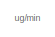
[diagram: root canvas - part 1/2, top left region]
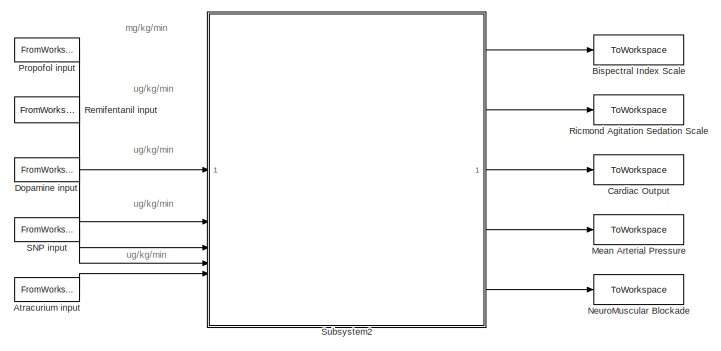
[diagram: root canvas - part 2/2, bottom right region]
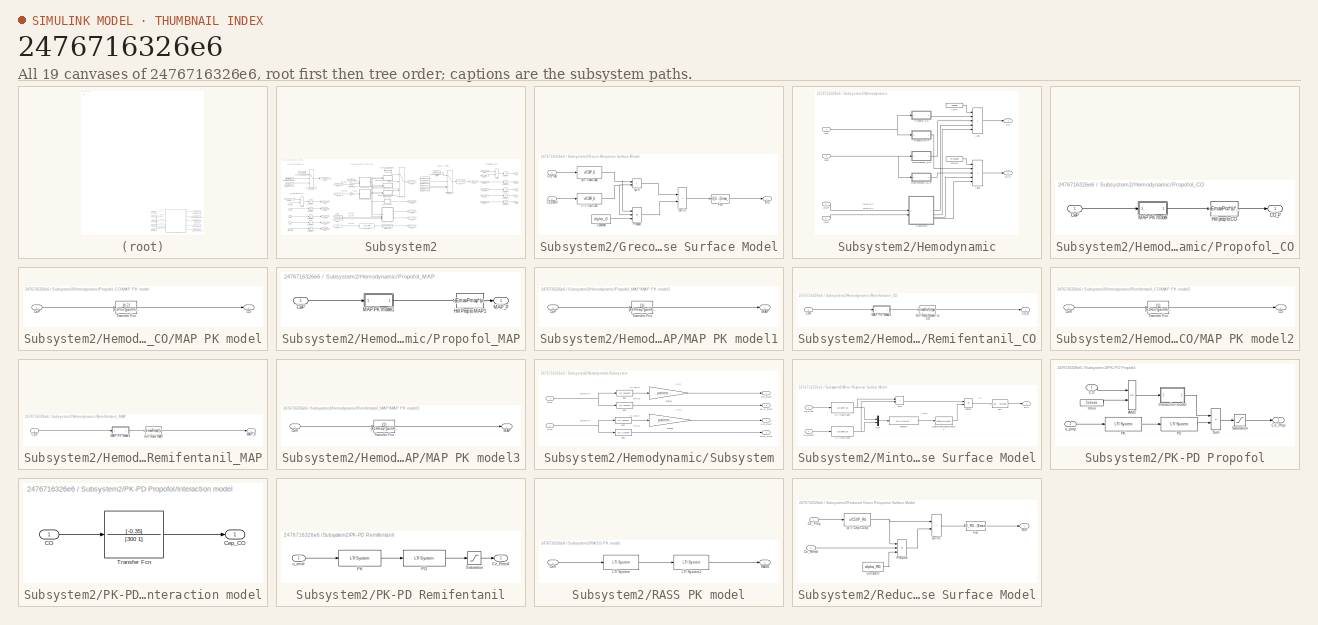
[diagram: thumbnail index - all 19 canvases of the model, root first then tree order]
MODEL slx_2476716326e6
KIND model
CONFIG AbsTol = auto
CONFIG EnableMultiTasking = off
CONFIG FixedStep = ST
CONFIG MaxStep = auto
CONFIG MinStep = auto
CONFIG RelTol = 1e-3
CONFIG SampleTimeConstraint = Unconstrained
CONFIG SolverName = ode3
CONFIG StartTime = 0.0
CONFIG StopTime = Tsim
BLOCK [FromWorkspace] Atracurium input
  Interpolate = off
  OutputAfterFinalValue = Setting to zero
  VariableName = Atracinput
BLOCK [ToWorkspace] Bispectral Index Scale
  FixptAsFi = on
  MaxDataPoints = inf
  SampleTime = -1
  SaveFormat = Timeseries
  VariableName = BIS
BLOCK [ToWorkspace] Cardiac Output
  FixptAsFi = on
  MaxDataPoints = inf
  SampleTime = -1
  SaveFormat = Timeseries
  VariableName = CO
BLOCK [FromWorkspace] Dopamine input
  Interpolate = off
  OutputAfterFinalValue = Setting to zero
  VariableName = Dopinput
BLOCK [ToWorkspace] Mean Arterial Pressure
  FixptAsFi = on
  MaxDataPoints = inf
  SampleTime = -1
  SaveFormat = Timeseries
  VariableName = MAP
BLOCK [ToWorkspace] NeuroMuscular Blockade
  FixptAsFi = on
  MaxDataPoints = inf
  SampleTime = -1
  SaveFormat = Timeseries
  VariableName = NMB
BLOCK [FromWorkspace] Propofol input
  Interpolate = off
  OutputAfterFinalValue = Setting to zero
  VariableName = Propinput
BLOCK [FromWorkspace] Remifentanil input
  Interpolate = off
  OutputAfterFinalValue = Setting to zero
  VariableName = Reminput
BLOCK [ToWorkspace] Ricmond Agitation Sedation Scale
  FixptAsFi = on
  MaxDataPoints = inf
  SampleTime = -1
  SaveFormat = Timeseries
  VariableName = RASS
BLOCK [FromWorkspace] SNP input
  Interpolate = off
  OutputAfterFinalValue = Setting to zero
  VariableName = SNPinput
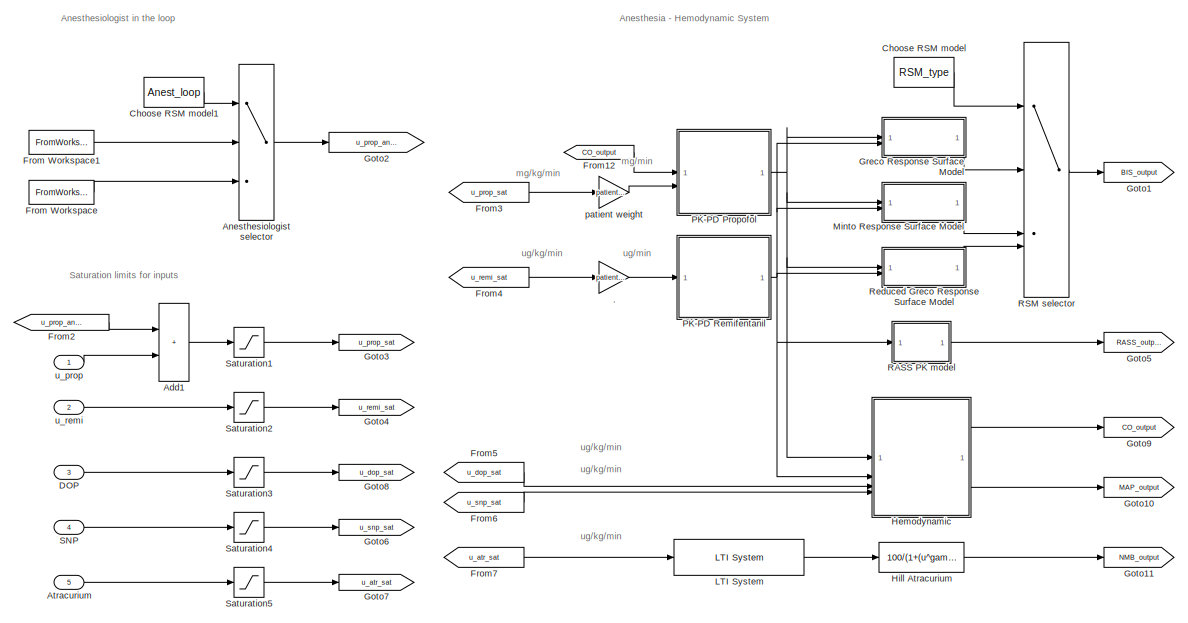
[diagram: Subsystem2 - part 1/2, left side, full height]
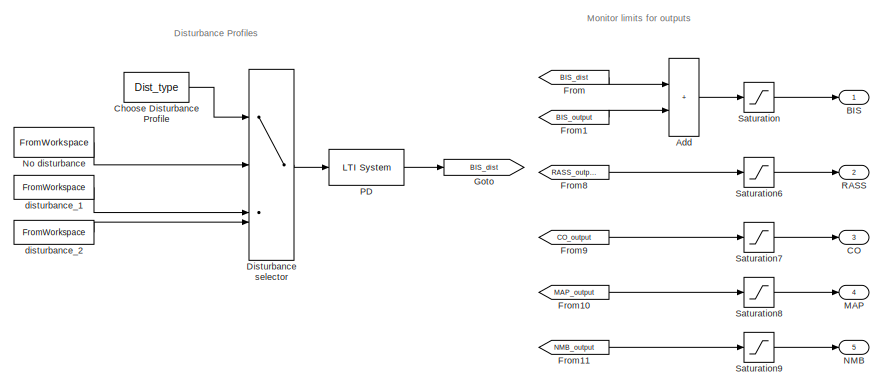
[diagram: Subsystem2 - part 2/2, middle right region]
BLOCK [SubSystem] Subsystem2
BLOCK [Gain] Subsystem2/.
  Gain = patient.weight
BLOCK [Sum] Subsystem2/Add
  IconShape = rectangular
BLOCK [Sum] Subsystem2/Add1
  IconShape = rectangular
BLOCK [MultiPortSwitch] Subsystem2/Anesthesiologist selector
  DataPortIndices = {1,2}
  DataPortOrder = Specify indices
  InputSameDT = off
  Inputs = 2
  SaturateOnIntegerOverflow = off
BLOCK [Inport] Subsystem2/Atracurium
  Port = 5
BLOCK [Outport] Subsystem2/BIS
BLOCK [Outport] Subsystem2/CO
  Port = 3
BLOCK [Constant] Subsystem2/Choose Disturbance Profile
  Value = Dist_type
BLOCK [Constant] Subsystem2/Choose RSM model
  Value = RSM_type
BLOCK [Constant] Subsystem2/Choose RSM model1
  Value = Anest_loop
BLOCK [Inport] Subsystem2/DOP
  Port = 3
BLOCK [MultiPortSwitch] Subsystem2/Disturbance selector
  DataPortOrder = Specify indices
  InputSameDT = off
  Inputs = 10
  SaturateOnIntegerOverflow = off
BLOCK [From] Subsystem2/From
  GotoTag = BIS_dist
BLOCK [FromWorkspace] Subsystem2/From Workspace
  VariableName = anestS
BLOCK [FromWorkspace] Subsystem2/From Workspace1
  VariableName = no_anest
BLOCK [From] Subsystem2/From1
  GotoTag = BIS_output
BLOCK [From] Subsystem2/From10
  GotoTag = MAP_output
BLOCK [From] Subsystem2/From11
  GotoTag = NMB_output
BLOCK [From] Subsystem2/From12
  GotoTag = CO_output
BLOCK [From] Subsystem2/From2
  GotoTag = u_prop_anest
BLOCK [From] Subsystem2/From3
  GotoTag = u_prop_sat
BLOCK [From] Subsystem2/From4
  GotoTag = u_remi_sat
BLOCK [From] Subsystem2/From5
  GotoTag = u_dop_sat
BLOCK [From] Subsystem2/From6
  GotoTag = u_snp_sat
BLOCK [From] Subsystem2/From7
  GotoTag = u_atr_sat
BLOCK [From] Subsystem2/From8
  GotoTag = RASS_output
BLOCK [From] Subsystem2/From9
  GotoTag = CO_output
BLOCK [Goto] Subsystem2/Goto
  GotoTag = BIS_dist
BLOCK [Goto] Subsystem2/Goto1
  GotoTag = BIS_output
BLOCK [Goto] Subsystem2/Goto10
  GotoTag = MAP_output
BLOCK [Goto] Subsystem2/Goto11
  GotoTag = NMB_output
BLOCK [Goto] Subsystem2/Goto2
  GotoTag = u_prop_anest
BLOCK [Goto] Subsystem2/Goto3
  GotoTag = u_prop_sat
BLOCK [Goto] Subsystem2/Goto4
  GotoTag = u_remi_sat
BLOCK [Goto] Subsystem2/Goto5
  GotoTag = RASS_output
BLOCK [Goto] Subsystem2/Goto6
  GotoTag = u_snp_sat
BLOCK [Goto] Subsystem2/Goto7
  GotoTag = u_atr_sat
BLOCK [Goto] Subsystem2/Goto8
  GotoTag = u_dop_sat
BLOCK [Goto] Subsystem2/Goto9
  GotoTag = CO_output
BLOCK [SubSystem] Subsystem2/Greco Response Surface Model
BLOCK [Outport] Subsystem2/Greco Response Surface Model/BIS
BLOCK [Inport] Subsystem2/Greco Response Surface Model/Ce_Prop
BLOCK [Inport] Subsystem2/Greco Response Surface Model/Ce_Remif
  Port = 2
BLOCK [Constant] Subsystem2/Greco Response Surface Model/Constant
  Value = alpha_G
BLOCK [Fcn] Subsystem2/Greco Response Surface Model/Fcn
  Expr = E0_G - (Emax_G) * u^gamma_G / (1+u^gamma_G)
BLOCK [Fcn] Subsystem2/Greco Response Surface Model/Ip = Cep//C50p
  Expr = u/C50P_G
BLOCK [Sum] Subsystem2/Greco Response Surface Model/Ip+Ir
  IconShape = rectangular
BLOCK [Sum] Subsystem2/Greco Response Surface Model/Ip+Ir1
  IconShape = rectangular
BLOCK [Fcn] Subsystem2/Greco Response Surface Model/Ir = Cer//C50r
  Expr = u/C50R_G
BLOCK [Product] Subsystem2/Greco Response Surface Model/Product
  Inputs = 3
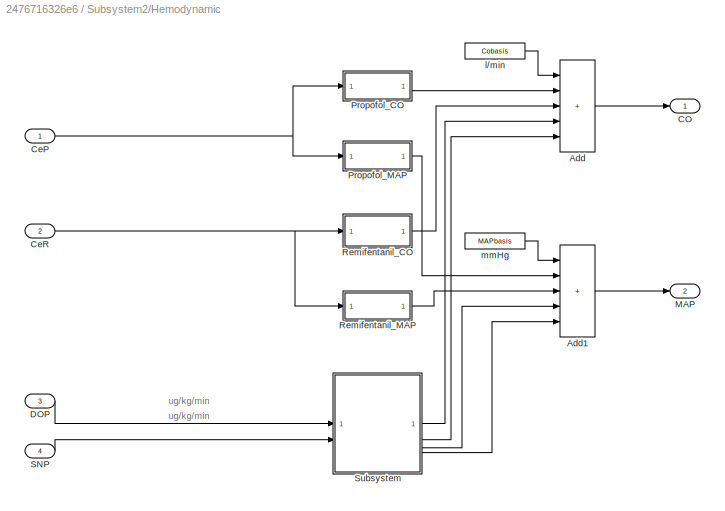
BLOCK [SubSystem] Subsystem2/Hemodynamic
BLOCK [Sum] Subsystem2/Hemodynamic/Add
  IconShape = rectangular
  Inputs = +++++
BLOCK [Sum] Subsystem2/Hemodynamic/Add1
  IconShape = rectangular
  Inputs = +++++
BLOCK [Outport] Subsystem2/Hemodynamic/CO
BLOCK [Inport] Subsystem2/Hemodynamic/CeP
BLOCK [Inport] Subsystem2/Hemodynamic/CeR
  Port = 2
BLOCK [Inport] Subsystem2/Hemodynamic/DOP
  Port = 3
BLOCK [Outport] Subsystem2/Hemodynamic/MAP
  Port = 2
BLOCK [SubSystem] Subsystem2/Hemodynamic/Propofol_CO
BLOCK [Outport] Subsystem2/Hemodynamic/Propofol_CO/CO_P
  VectorParamsAs1DForOutWhenUnconnected = off
BLOCK [Inport] Subsystem2/Hemodynamic/Propofol_CO/CeP
BLOCK [Fcn] Subsystem2/Hemodynamic/Propofol_CO/Hill prop to CO
  Expr = -(EmaxPco*(u^gammaPco/(u^gammaPco+C50Pco^gammaPco)))
BLOCK [SubSystem] Subsystem2/Hemodynamic/Propofol_CO/MAP PK model
BLOCK [Outport] Subsystem2/Hemodynamic/Propofol_CO/MAP PK model/CO
BLOCK [Inport] Subsystem2/Hemodynamic/Propofol_CO/MAP PK model/CeP
BLOCK [TransferFcn] Subsystem2/Hemodynamic/Propofol_CO/MAP PK model/Transfer Fcn
  Denominator = [k1Pco*gainPco k0Pco]
  Numerator = [0.7]
BLOCK [SubSystem] Subsystem2/Hemodynamic/Propofol_MAP
BLOCK [Inport] Subsystem2/Hemodynamic/Propofol_MAP/CeP
BLOCK [Fcn] Subsystem2/Hemodynamic/Propofol_MAP/Hill Prop to MAP1
  Expr = -(EmaxPmap*(u^gammaPmap/(u^gammaPmap+C50Pmap^gammaPmap)))
BLOCK [SubSystem] Subsystem2/Hemodynamic/Propofol_MAP/MAP PK model1
BLOCK [Inport] Subsystem2/Hemodynamic/Propofol_MAP/MAP PK model1/CeP
BLOCK [Outport] Subsystem2/Hemodynamic/Propofol_MAP/MAP PK model1/MAP
BLOCK [TransferFcn] Subsystem2/Hemodynamic/Propofol_MAP/MAP PK model1/Transfer Fcn
  Denominator = [k1Pmap*gainPmap k0Pmap]
BLOCK [Outport] Subsystem2/Hemodynamic/Propofol_MAP/MAP_P
  VectorParamsAs1DForOutWhenUnconnected = off
BLOCK [SubSystem] Subsystem2/Hemodynamic/Remifentanil_CO
BLOCK [Outport] Subsystem2/Hemodynamic/Remifentanil_CO/CO_R
  VectorParamsAs1DForOutWhenUnconnected = off
BLOCK [Inport] Subsystem2/Hemodynamic/Remifentanil_CO/CeR
BLOCK [Fcn] Subsystem2/Hemodynamic/Remifentanil_CO/Hill Remifentanil to CO
  Expr = EmaxRco*(u^gammaRco/(u^gammaRco+C50Rco^gammaRco))
BLOCK [SubSystem] Subsystem2/Hemodynamic/Remifentanil_CO/MAP PK model2
BLOCK [Outport] Subsystem2/Hemodynamic/Remifentanil_CO/MAP PK model2/CO
BLOCK [Inport] Subsystem2/Hemodynamic/Remifentanil_CO/MAP PK model2/CeR
BLOCK [TransferFcn] Subsystem2/Hemodynamic/Remifentanil_CO/MAP PK model2/Transfer Fcn
  Denominator = [k1Rco*gainRco k0Rco]
BLOCK [SubSystem] Subsystem2/Hemodynamic/Remifentanil_MAP
BLOCK [Inport] Subsystem2/Hemodynamic/Remifentanil_MAP/Ce_R
BLOCK [Fcn] Subsystem2/Hemodynamic/Remifentanil_MAP/Hill Remi MAP
  Expr = -(EmaxRmap*(u^gammaRmap/(u^gammaRmap+C50Rmap^gammaRmap)))
BLOCK [SubSystem] Subsystem2/Hemodynamic/Remifentanil_MAP/MAP PK model3
BLOCK [Inport] Subsystem2/Hemodynamic/Remifentanil_MAP/MAP PK model3/CeR
BLOCK [Outport] Subsystem2/Hemodynamic/Remifentanil_MAP/MAP PK model3/MAP
BLOCK [TransferFcn] Subsystem2/Hemodynamic/Remifentanil_MAP/MAP PK model3/Transfer Fcn
  Denominator = [k1Rmap*gainRmap k0Rmap]
BLOCK [Outport] Subsystem2/Hemodynamic/Remifentanil_MAP/MAP_R
  VectorParamsAs1DForOutWhenUnconnected = off
BLOCK [Inport] Subsystem2/Hemodynamic/SNP
  Port = 4
BLOCK [SubSystem] Subsystem2/Hemodynamic/Subsystem
BLOCK [Outport] Subsystem2/Hemodynamic/Subsystem/CO_DOP
BLOCK [Outport] Subsystem2/Hemodynamic/Subsystem/CO_SNP
  Port = 2
BLOCK [Inport] Subsystem2/Hemodynamic/Subsystem/DOP
BLOCK [Gain] Subsystem2/Hemodynamic/Subsystem/Gain1
  Gain = patient.weight/1000
BLOCK [Gain] Subsystem2/Hemodynamic/Subsystem/Gain2
  Gain = patient.weight/1000
BLOCK [Outport] Subsystem2/Hemodynamic/Subsystem/MAP_DOP
  Port = 3
BLOCK [Outport] Subsystem2/Hemodynamic/Subsystem/MAP_SNP
  Port = 4
BLOCK [Inport] Subsystem2/Hemodynamic/Subsystem/SNP
  Port = 2
BLOCK [Reference] Subsystem2/Hemodynamic/Subsystem/g11  REF=cstblocks/LTI System
  SourceBlock = cstblocks/LTI System
  SourceType = LTI Block
BLOCK [Reference] Subsystem2/Hemodynamic/Subsystem/g12  REF=cstblocks/LTI System
  SourceBlock = cstblocks/LTI System
  SourceType = LTI Block
BLOCK [Reference] Subsystem2/Hemodynamic/Subsystem/g21  REF=cstblocks/LTI System
  SourceBlock = cstblocks/LTI System
  SourceType = LTI Block
BLOCK [Reference] Subsystem2/Hemodynamic/Subsystem/g22  REF=cstblocks/LTI System
  SourceBlock = cstblocks/LTI System
  SourceType = LTI Block
BLOCK [Constant] Subsystem2/Hemodynamic/l//min
  SampleTime = Ts
  Value = Cobasis
BLOCK [Constant] Subsystem2/Hemodynamic/mmHg
  SampleTime = Ts
  Value = MAPbasis
BLOCK [Fcn] Subsystem2/Hill Atracurium
  Expr = 100/(1+(u^gammaN/C50N^gammaN))
BLOCK [Reference] Subsystem2/LTI System  REF=cstblocks/LTI System
  SourceBlock = cstblocks/LTI System
  SourceType = LTI Block
BLOCK [Outport] Subsystem2/MAP
  Port = 4
BLOCK [SubSystem] Subsystem2/Minto Response Surface Model
BLOCK [Fcn] Subsystem2/Minto Response Surface Model/1-beta*theta+beta*theta^2
  Expr = 1-beta_M*u+beta_M*u^2
BLOCK [Outport] Subsystem2/Minto Response Surface Model/BIS
BLOCK [Inport] Subsystem2/Minto Response Surface Model/Ce_Prop
BLOCK [Inport] Subsystem2/Minto Response Surface Model/Ce_Remif
  Port = 2
BLOCK [Fcn] Subsystem2/Minto Response Surface Model/Fcn
  Expr = E0_M - (Emax_M)*u^gamma_M / (1+u^gamma_M)
BLOCK [Fcn] Subsystem2/Minto Response Surface Model/Ip = Cep//C50p
  Expr = u/C50P_M
BLOCK [Sum] Subsystem2/Minto Response Surface Model/Ip+Ir
  IconShape = rectangular
BLOCK [Fcn] Subsystem2/Minto Response Surface Model/Ir = Cer//C50r
  Expr = u/C50R_M
BLOCK [Mux] Subsystem2/Minto Response Surface Model/Mux
  DisplayOption = bar
  Inputs = 2
BLOCK [Fcn] Subsystem2/Minto Response Surface Model/Theta(t)
  Expr = u(1)/(u(1)+u(2))
BLOCK [Product] Subsystem2/Minto Response Surface Model/Theta1
  Inputs = */
BLOCK [Outport] Subsystem2/NMB
  Port = 5
BLOCK [FromWorkspace] Subsystem2/No disturbance
  Interpolate = off
  OutputAfterFinalValue = Setting to zero
  VariableName = no_disturbance
BLOCK [Reference] Subsystem2/PD  REF=cstblocks/LTI System
  SourceBlock = cstblocks/LTI System
  SourceType = LTI Block
BLOCK [SubSystem] Subsystem2/PK-PD Propofol
BLOCK [Sum] Subsystem2/PK-PD Propofol/Add2
  IconShape = rectangular
  Inputs = +-
BLOCK [Inport] Subsystem2/PK-PD Propofol/CO
BLOCK [Outport] Subsystem2/PK-PD Propofol/Ce_Prop
BLOCK [SubSystem] Subsystem2/PK-PD Propofol/Interaction model
BLOCK [Inport] Subsystem2/PK-PD Propofol/Interaction model/CO
BLOCK [Outport] Subsystem2/PK-PD Propofol/Interaction model/Cep_CO
BLOCK [TransferFcn] Subsystem2/PK-PD Propofol/Interaction model/Transfer Fcn
  Denominator = [300 1]
  Numerator = [-0.35]
BLOCK [Reference] Subsystem2/PK-PD Propofol/PD  REF=cstblocks/LTI System
  SourceBlock = cstblocks/LTI System
  SourceType = LTI Block
BLOCK [Reference] Subsystem2/PK-PD Propofol/PK  REF=cstblocks/LTI System
  SourceBlock = cstblocks/LTI System
  SourceType = LTI Block
BLOCK [Saturate] Subsystem2/PK-PD Propofol/Saturation
  LowerLimit = 0.001
  UpperLimit = Inf
  ZeroCross = off
BLOCK [Sum] Subsystem2/PK-PD Propofol/Sum
  IconShape = rectangular
BLOCK [Constant] Subsystem2/PK-PD Propofol/l//min
  SampleTime = Ts
  Value = Cobasis
BLOCK [Inport] Subsystem2/PK-PD Propofol/u_prop
  Port = 2
BLOCK [SubSystem] Subsystem2/PK-PD Remifentanil
BLOCK [Outport] Subsystem2/PK-PD Remifentanil/Ce_Remif
BLOCK [Reference] Subsystem2/PK-PD Remifentanil/PD  REF=cstblocks/LTI System
  SourceBlock = cstblocks/LTI System
  SourceType = LTI Block
BLOCK [Reference] Subsystem2/PK-PD Remifentanil/PK  REF=cstblocks/LTI System
  SourceBlock = cstblocks/LTI System
  SourceType = LTI Block
BLOCK [Saturate] Subsystem2/PK-PD Remifentanil/Saturation
  LowerLimit = 0.001
  UpperLimit = Inf
  ZeroCross = off
BLOCK [Inport] Subsystem2/PK-PD Remifentanil/u_remif
BLOCK [Outport] Subsystem2/RASS
  Port = 2
BLOCK [SubSystem] Subsystem2/RASS PK model
BLOCK [Inport] Subsystem2/RASS PK model/CeR
BLOCK [Reference] Subsystem2/RASS PK model/LTI System  REF=cstblocks/LTI System
  SourceBlock = cstblocks/LTI System
  SourceType = LTI Block
BLOCK [Reference] Subsystem2/RASS PK model/LTI System1  REF=cstblocks/LTI System
  SourceBlock = cstblocks/LTI System
  SourceType = LTI Block
BLOCK [Outport] Subsystem2/RASS PK model/RASS
BLOCK [MultiPortSwitch] Subsystem2/RSM selector
  DataPortOrder = Specify indices
  InputSameDT = off
  SaturateOnIntegerOverflow = off
BLOCK [SubSystem] Subsystem2/Reduced Greco Response Surface Model
BLOCK [Outport] Subsystem2/Reduced Greco Response Surface Model/BIS
BLOCK [Inport] Subsystem2/Reduced Greco Response Surface Model/Ce_Prop
BLOCK [Inport] Subsystem2/Reduced Greco Response Surface Model/Ce_Remif
  Port = 2
BLOCK [Constant] Subsystem2/Reduced Greco Response Surface Model/Constant
  Value = alpha_RG
BLOCK [Fcn] Subsystem2/Reduced Greco Response Surface Model/Fcn
  Expr = E0_RG - (Emax_RG ) * u^gamma_RG / (1+u^gamma_RG)
BLOCK [Fcn] Subsystem2/Reduced Greco Response Surface Model/Ip = Cep//C50p
  Expr = u/C50P_RG
BLOCK [Sum] Subsystem2/Reduced Greco Response Surface Model/Ip+Ir1
  IconShape = rectangular
BLOCK [Product] Subsystem2/Reduced Greco Response Surface Model/Product
  Inputs = 3
BLOCK [Inport] Subsystem2/SNP
  Port = 4
BLOCK [Saturate] Subsystem2/Saturation
  LowerLimit = 0
  UpperLimit = 100
BLOCK [Saturate] Subsystem2/Saturation1
  LowerLimit = 0
  UpperLimit = 2.5
BLOCK [Saturate] Subsystem2/Saturation2
  LowerLimit = 0
  UpperLimit = 4
BLOCK [Saturate] Subsystem2/Saturation3
  LowerLimit = 0
  UpperLimit = 20
BLOCK [Saturate] Subsystem2/Saturation4
  LowerLimit = 0
  UpperLimit = 10
BLOCK [Saturate] Subsystem2/Saturation5
  LowerLimit = 0
  UpperLimit = 29.5
BLOCK [Saturate] Subsystem2/Saturation6
  LowerLimit = -5
  UpperLimit = 4
BLOCK [Saturate] Subsystem2/Saturation7
  LowerLimit = 0
  UpperLimit = 40
BLOCK [Saturate] Subsystem2/Saturation8
  LowerLimit = 0
  UpperLimit = 150
BLOCK [Saturate] Subsystem2/Saturation9
  LowerLimit = 0
  UpperLimit = 100
BLOCK [FromWorkspace] Subsystem2/disturbance_1
  Interpolate = off
  OutputAfterFinalValue = Setting to zero
  VariableName = disturbance_1
BLOCK [FromWorkspace] Subsystem2/disturbance_2
  Interpolate = off
  OutputAfterFinalValue = Setting to zero
  VariableName = disturbance_2
BLOCK [Gain] Subsystem2/patient weight
  Gain = patient.weight
BLOCK [Inport] Subsystem2/u_prop
BLOCK [Inport] Subsystem2/u_remi
  Port = 2
ANNOTATION (root): ug/kg/min
ANNOTATION (root): mg/kg/min
ANNOTATION (root): ug/min
ANNOTATION Subsystem2: ug/kg/min
ANNOTATION Subsystem2: mg/kg/min
ANNOTATION Subsystem2: mg/min
ANNOTATION Subsystem2: ug/min
ANNOTATION Subsystem2: Anesthesia - Hemodynamic System
ANNOTATION Subsystem2: Anesthesiologist in the loop
ANNOTATION Subsystem2: Disturbance Profiles
ANNOTATION Subsystem2: Monitor limits for outputs
ANNOTATION Subsystem2: Saturation limits for inputs
ANNOTATION Subsystem2/Hemodynamic: ug/kg/min
ANNOTATION Subsystem2/Hemodynamic/Subsystem: l/min
ANNOTATION Subsystem2/Hemodynamic/Subsystem: ml/kgmin
ANNOTATION Subsystem2/Hemodynamic/Subsystem: mmHg
ANNOTATION Subsystem2/Hemodynamic/Subsystem: ug/kg/min
ANNOTATION Subsystem2/Minto Response Surface Model: I(t)
ANNOTATION Subsystem2/Minto Response Surface Model: theta
LINE Atracurium input:1 -> Subsystem2:5
LINE Dopamine input:1 -> Subsystem2:3
LINE Propofol input:1 -> Subsystem2:1
LINE Remifentanil input:1 -> Subsystem2:2
LINE SNP input:1 -> Subsystem2:4
LINE Subsystem2/.:1 -> Subsystem2/PK-PD Remifentanil:1
LINE Subsystem2/Add1:1 -> Subsystem2/Saturation1:1
LINE Subsystem2/Add:1 -> Subsystem2/Saturation:1
LINE Subsystem2/Anesthesiologist selector:1 -> Subsystem2/Goto2:1
LINE Subsystem2/Atracurium:1 -> Subsystem2/Saturation5:1
LINE Subsystem2/Choose Disturbance Profile:1 -> Subsystem2/Disturbance selector:1
LINE Subsystem2/Choose RSM model1:1 -> Subsystem2/Anesthesiologist selector:1
LINE Subsystem2/Choose RSM model:1 -> Subsystem2/RSM selector:1
LINE Subsystem2/DOP:1 -> Subsystem2/Saturation3:1
LINE Subsystem2/Disturbance selector:1 -> Subsystem2/PD:1
LINE Subsystem2/From Workspace1:1 -> Subsystem2/Anesthesiologist selector:2
LINE Subsystem2/From Workspace:1 -> Subsystem2/Anesthesiologist selector:3
LINE Subsystem2/From10:1 -> Subsystem2/Saturation8:1
LINE Subsystem2/From11:1 -> Subsystem2/Saturation9:1
LINE Subsystem2/From12:1 -> Subsystem2/PK-PD Propofol:1
LINE Subsystem2/From1:1 -> Subsystem2/Add:2
LINE Subsystem2/From2:1 -> Subsystem2/Add1:1
LINE Subsystem2/From3:1 -> Subsystem2/patient weight:1
LINE Subsystem2/From4:1 -> Subsystem2/.:1
LINE Subsystem2/From5:1 -> Subsystem2/Hemodynamic:3
LINE Subsystem2/From6:1 -> Subsystem2/Hemodynamic:4
LINE Subsystem2/From7:1 -> Subsystem2/LTI System:1
LINE Subsystem2/From8:1 -> Subsystem2/Saturation6:1
LINE Subsystem2/From9:1 -> Subsystem2/Saturation7:1
LINE Subsystem2/From:1 -> Subsystem2/Add:1
LINE Subsystem2/Greco Response Surface Model/Ce_Prop:1 -> Subsystem2/Greco Response Surface Model/Ip = Cep//C50p:1
LINE Subsystem2/Greco Response Surface Model/Ce_Remif:1 -> Subsystem2/Greco Response Surface Model/Ir = Cer//C50r:1
LINE Subsystem2/Greco Response Surface Model/Constant:1 -> Subsystem2/Greco Response Surface Model/Product:3
LINE Subsystem2/Greco Response Surface Model/Fcn:1 -> Subsystem2/Greco Response Surface Model/BIS:1
NET Subsystem2/Greco Response Surface Model/Ip = Cep//C50p:1 -> Subsystem2/Greco Response Surface Model/Ip+Ir:1, Subsystem2/Greco Response Surface Model/Product:1
LINE Subsystem2/Greco Response Surface Model/Ip+Ir1:1 -> Subsystem2/Greco Response Surface Model/Fcn:1
LINE Subsystem2/Greco Response Surface Model/Ip+Ir:1 -> Subsystem2/Greco Response Surface Model/Ip+Ir1:1
NET Subsystem2/Greco Response Surface Model/Ir = Cer//C50r:1 -> Subsystem2/Greco Response Surface Model/Ip+Ir:2, Subsystem2/Greco Response Surface Model/Product:2
LINE Subsystem2/Greco Response Surface Model/Product:1 -> Subsystem2/Greco Response Surface Model/Ip+Ir1:2
LINE Subsystem2/Greco Response Surface Model:1 -> Subsystem2/RSM selector:2
LINE Subsystem2/Hemodynamic/Add1:1 -> Subsystem2/Hemodynamic/MAP:1
LINE Subsystem2/Hemodynamic/Add:1 -> Subsystem2/Hemodynamic/CO:1
NET Subsystem2/Hemodynamic/CeP:1 -> Subsystem2/Hemodynamic/Propofol_CO:1, Subsystem2/Hemodynamic/Propofol_MAP:1
NET Subsystem2/Hemodynamic/CeR:1 -> Subsystem2/Hemodynamic/Remifentanil_CO:1, Subsystem2/Hemodynamic/Remifentanil_MAP:1
LINE Subsystem2/Hemodynamic/DOP:1 -> Subsystem2/Hemodynamic/Subsystem:1
LINE Subsystem2/Hemodynamic/Propofol_CO/CeP:1 -> Subsystem2/Hemodynamic/Propofol_CO/MAP PK model:1
LINE Subsystem2/Hemodynamic/Propofol_CO/Hill prop to CO:1 -> Subsystem2/Hemodynamic/Propofol_CO/CO_P:1
LINE Subsystem2/Hemodynamic/Propofol_CO/MAP PK model/CeP:1 -> Subsystem2/Hemodynamic/Propofol_CO/MAP PK model/Transfer Fcn:1
LINE Subsystem2/Hemodynamic/Propofol_CO/MAP PK model/Transfer Fcn:1 -> Subsystem2/Hemodynamic/Propofol_CO/MAP PK model/CO:1
LINE Subsystem2/Hemodynamic/Propofol_CO/MAP PK model:1 -> Subsystem2/Hemodynamic/Propofol_CO/Hill prop to CO:1
LINE Subsystem2/Hemodynamic/Propofol_CO:1 -> Subsystem2/Hemodynamic/Add:2
LINE Subsystem2/Hemodynamic/Propofol_MAP/CeP:1 -> Subsystem2/Hemodynamic/Propofol_MAP/MAP PK model1:1
LINE Subsystem2/Hemodynamic/Propofol_MAP/Hill Prop to MAP1:1 -> Subsystem2/Hemodynamic/Propofol_MAP/MAP_P:1
LINE Subsystem2/Hemodynamic/Propofol_MAP/MAP PK model1/CeP:1 -> Subsystem2/Hemodynamic/Propofol_MAP/MAP PK model1/Transfer Fcn:1
LINE Subsystem2/Hemodynamic/Propofol_MAP/MAP PK model1/Transfer Fcn:1 -> Subsystem2/Hemodynamic/Propofol_MAP/MAP PK model1/MAP:1
LINE Subsystem2/Hemodynamic/Propofol_MAP/MAP PK model1:1 -> Subsystem2/Hemodynamic/Propofol_MAP/Hill Prop to MAP1:1
LINE Subsystem2/Hemodynamic/Propofol_MAP:1 -> Subsystem2/Hemodynamic/Add1:2
LINE Subsystem2/Hemodynamic/Remifentanil_CO/CeR:1 -> Subsystem2/Hemodynamic/Remifentanil_CO/MAP PK model2:1
LINE Subsystem2/Hemodynamic/Remifentanil_CO/Hill Remifentanil to CO:1 -> Subsystem2/Hemodynamic/Remifentanil_CO/CO_R:1
LINE Subsystem2/Hemodynamic/Remifentanil_CO/MAP PK model2/CeR:1 -> Subsystem2/Hemodynamic/Remifentanil_CO/MAP PK model2/Transfer Fcn:1
LINE Subsystem2/Hemodynamic/Remifentanil_CO/MAP PK model2/Transfer Fcn:1 -> Subsystem2/Hemodynamic/Remifentanil_CO/MAP PK model2/CO:1
LINE Subsystem2/Hemodynamic/Remifentanil_CO/MAP PK model2:1 -> Subsystem2/Hemodynamic/Remifentanil_CO/Hill Remifentanil to CO:1
LINE Subsystem2/Hemodynamic/Remifentanil_CO:1 -> Subsystem2/Hemodynamic/Add:3
LINE Subsystem2/Hemodynamic/Remifentanil_MAP/Ce_R:1 -> Subsystem2/Hemodynamic/Remifentanil_MAP/MAP PK model3:1
LINE Subsystem2/Hemodynamic/Remifentanil_MAP/Hill Remi MAP:1 -> Subsystem2/Hemodynamic/Remifentanil_MAP/MAP_R:1
LINE Subsystem2/Hemodynamic/Remifentanil_MAP/MAP PK model3/CeR:1 -> Subsystem2/Hemodynamic/Remifentanil_MAP/MAP PK model3/Transfer Fcn:1
LINE Subsystem2/Hemodynamic/Remifentanil_MAP/MAP PK model3/Transfer Fcn:1 -> Subsystem2/Hemodynamic/Remifentanil_MAP/MAP PK model3/MAP:1
LINE Subsystem2/Hemodynamic/Remifentanil_MAP/MAP PK model3:1 -> Subsystem2/Hemodynamic/Remifentanil_MAP/Hill Remi MAP:1
LINE Subsystem2/Hemodynamic/Remifentanil_MAP:1 -> Subsystem2/Hemodynamic/Add1:3
LINE Subsystem2/Hemodynamic/SNP:1 -> Subsystem2/Hemodynamic/Subsystem:2
NET Subsystem2/Hemodynamic/Subsystem/DOP:1 -> Subsystem2/Hemodynamic/Subsystem/g11:1, Subsystem2/Hemodynamic/Subsystem/g12:1
LINE Subsystem2/Hemodynamic/Subsystem/Gain1:1 -> Subsystem2/Hemodynamic/Subsystem/CO_DOP:1
LINE Subsystem2/Hemodynamic/Subsystem/Gain2:1 -> Subsystem2/Hemodynamic/Subsystem/CO_SNP:1
NET Subsystem2/Hemodynamic/Subsystem/SNP:1 -> Subsystem2/Hemodynamic/Subsystem/g21:1, Subsystem2/Hemodynamic/Subsystem/g22:1
LINE Subsystem2/Hemodynamic/Subsystem/g11:1 -> Subsystem2/Hemodynamic/Subsystem/Gain1:1
LINE Subsystem2/Hemodynamic/Subsystem/g12:1 -> Subsystem2/Hemodynamic/Subsystem/MAP_DOP:1
LINE Subsystem2/Hemodynamic/Subsystem/g21:1 -> Subsystem2/Hemodynamic/Subsystem/Gain2:1
LINE Subsystem2/Hemodynamic/Subsystem/g22:1 -> Subsystem2/Hemodynamic/Subsystem/MAP_SNP:1
LINE Subsystem2/Hemodynamic/Subsystem:1 -> Subsystem2/Hemodynamic/Add:4
LINE Subsystem2/Hemodynamic/Subsystem:2 -> Subsystem2/Hemodynamic/Add:5
LINE Subsystem2/Hemodynamic/Subsystem:3 -> Subsystem2/Hemodynamic/Add1:4
LINE Subsystem2/Hemodynamic/Subsystem:4 -> Subsystem2/Hemodynamic/Add1:5
LINE Subsystem2/Hemodynamic/l//min:1 -> Subsystem2/Hemodynamic/Add:1
LINE Subsystem2/Hemodynamic/mmHg:1 -> Subsystem2/Hemodynamic/Add1:1
LINE Subsystem2/Hemodynamic:1 -> Subsystem2/Goto9:1
LINE Subsystem2/Hemodynamic:2 -> Subsystem2/Goto10:1
LINE Subsystem2/Hill Atracurium:1 -> Subsystem2/Goto11:1
LINE Subsystem2/LTI System:1 -> Subsystem2/Hill Atracurium:1
LINE Subsystem2/Minto Response Surface Model/1-beta*theta+beta*theta^2:1 -> Subsystem2/Minto Response Surface Model/Theta1:2
LINE Subsystem2/Minto Response Surface Model/Ce_Prop:1 -> Subsystem2/Minto Response Surface Model/Ip = Cep//C50p:1
LINE Subsystem2/Minto Response Surface Model/Ce_Remif:1 -> Subsystem2/Minto Response Surface Model/Ir = Cer//C50r:1
LINE Subsystem2/Minto Response Surface Model/Fcn:1 -> Subsystem2/Minto Response Surface Model/BIS:1
NET Subsystem2/Minto Response Surface Model/Ip = Cep//C50p:1 -> Subsystem2/Minto Response Surface Model/Ip+Ir:1, Subsystem2/Minto Response Surface Model/Mux:1
LINE Subsystem2/Minto Response Surface Model/Ip+Ir:1 -> Subsystem2/Minto Response Surface Model/Theta1:1
NET Subsystem2/Minto Response Surface Model/Ir = Cer//C50r:1 -> Subsystem2/Minto Response Surface Model/Ip+Ir:2, Subsystem2/Minto Response Surface Model/Mux:2
LINE Subsystem2/Minto Response Surface Model/Mux:1 -> Subsystem2/Minto Response Surface Model/Theta(t):1
LINE Subsystem2/Minto Response Surface Model/Theta(t):1 -> Subsystem2/Minto Response Surface Model/1-beta*theta+beta*theta^2:1
LINE Subsystem2/Minto Response Surface Model/Theta1:1 -> Subsystem2/Minto Response Surface Model/Fcn:1
LINE Subsystem2/Minto Response Surface Model:1 -> Subsystem2/RSM selector:3
LINE Subsystem2/No disturbance:1 -> Subsystem2/Disturbance selector:2
LINE Subsystem2/PD:1 -> Subsystem2/Goto:1
LINE Subsystem2/PK-PD Propofol/Add2:1 -> Subsystem2/PK-PD Propofol/Interaction model:1
LINE Subsystem2/PK-PD Propofol/CO:1 -> Subsystem2/PK-PD Propofol/Add2:1
LINE Subsystem2/PK-PD Propofol/Interaction model/CO:1 -> Subsystem2/PK-PD Propofol/Interaction model/Transfer Fcn:1
LINE Subsystem2/PK-PD Propofol/Interaction model/Transfer Fcn:1 -> Subsystem2/PK-PD Propofol/Interaction model/Cep_CO:1
LINE Subsystem2/PK-PD Propofol/Interaction model:1 -> Subsystem2/PK-PD Propofol/Sum:1
LINE Subsystem2/PK-PD Propofol/PD:1 -> Subsystem2/PK-PD Propofol/Sum:2
LINE Subsystem2/PK-PD Propofol/PK:1 -> Subsystem2/PK-PD Propofol/PD:1
LINE Subsystem2/PK-PD Propofol/Saturation:1 -> Subsystem2/PK-PD Propofol/Ce_Prop:1
LINE Subsystem2/PK-PD Propofol/Sum:1 -> Subsystem2/PK-PD Propofol/Saturation:1
LINE Subsystem2/PK-PD Propofol/l//min:1 -> Subsystem2/PK-PD Propofol/Add2:2
LINE Subsystem2/PK-PD Propofol/u_prop:1 -> Subsystem2/PK-PD Propofol/PK:1
NET Subsystem2/PK-PD Propofol:1 -> Subsystem2/Greco Response Surface Model:1, Subsystem2/Hemodynamic:1, Subsystem2/Minto Response Surface Model:1, Subsystem2/Reduced Greco Response Surface Model:1
LINE Subsystem2/PK-PD Remifentanil/PD:1 -> Subsystem2/PK-PD Remifentanil/Saturation:1
LINE Subsystem2/PK-PD Remifentanil/PK:1 -> Subsystem2/PK-PD Remifentanil/PD:1
LINE Subsystem2/PK-PD Remifentanil/Saturation:1 -> Subsystem2/PK-PD Remifentanil/Ce_Remif:1
LINE Subsystem2/PK-PD Remifentanil/u_remif:1 -> Subsystem2/PK-PD Remifentanil/PK:1
NET Subsystem2/PK-PD Remifentanil:1 -> Subsystem2/Greco Response Surface Model:2, Subsystem2/Hemodynamic:2, Subsystem2/Minto Response Surface Model:2, Subsystem2/RASS PK model:1, Subsystem2/Reduced Greco Response Surface Model:2
LINE Subsystem2/RASS PK model/CeR:1 -> Subsystem2/RASS PK model/LTI System:1
LINE Subsystem2/RASS PK model/LTI System1:1 -> Subsystem2/RASS PK model/RASS:1
LINE Subsystem2/RASS PK model/LTI System:1 -> Subsystem2/RASS PK model/LTI System1:1
LINE Subsystem2/RASS PK model:1 -> Subsystem2/Goto5:1
LINE Subsystem2/RSM selector:1 -> Subsystem2/Goto1:1
LINE Subsystem2/Reduced Greco Response Surface Model/Ce_Prop:1 -> Subsystem2/Reduced Greco Response Surface Model/Ip = Cep//C50p:1
LINE Subsystem2/Reduced Greco Response Surface Model/Ce_Remif:1 -> Subsystem2/Reduced Greco Response Surface Model/Product:2
LINE Subsystem2/Reduced Greco Response Surface Model/Constant:1 -> Subsystem2/Reduced Greco Response Surface Model/Product:3
LINE Subsystem2/Reduced Greco Response Surface Model/Fcn:1 -> Subsystem2/Reduced Greco Response Surface Model/BIS:1
NET Subsystem2/Reduced Greco Response Surface Model/Ip = Cep//C50p:1 -> Subsystem2/Reduced Greco Response Surface Model/Ip+Ir1:1, Subsystem2/Reduced Greco Response Surface Model/Product:1
LINE Subsystem2/Reduced Greco Response Surface Model/Ip+Ir1:1 -> Subsystem2/Reduced Greco Response Surface Model/Fcn:1
LINE Subsystem2/Reduced Greco Response Surface Model/Product:1 -> Subsystem2/Reduced Greco Response Surface Model/Ip+Ir1:2
LINE Subsystem2/Reduced Greco Response Surface Model:1 -> Subsystem2/RSM selector:4
LINE Subsystem2/SNP:1 -> Subsystem2/Saturation4:1
LINE Subsystem2/Saturation1:1 -> Subsystem2/Goto3:1
LINE Subsystem2/Saturation2:1 -> Subsystem2/Goto4:1
LINE Subsystem2/Saturation3:1 -> Subsystem2/Goto8:1
LINE Subsystem2/Saturation4:1 -> Subsystem2/Goto6:1
LINE Subsystem2/Saturation5:1 -> Subsystem2/Goto7:1
LINE Subsystem2/Saturation6:1 -> Subsystem2/RASS:1
LINE Subsystem2/Saturation7:1 -> Subsystem2/CO:1
LINE Subsystem2/Saturation8:1 -> Subsystem2/MAP:1
LINE Subsystem2/Saturation9:1 -> Subsystem2/NMB:1
LINE Subsystem2/Saturation:1 -> Subsystem2/BIS:1
LINE Subsystem2/disturbance_1:1 -> Subsystem2/Disturbance selector:3
LINE Subsystem2/disturbance_2:1 -> Subsystem2/Disturbance selector:4
LINE Subsystem2/patient weight:1 -> Subsystem2/PK-PD Propofol:2
LINE Subsystem2/u_prop:1 -> Subsystem2/Add1:2
LINE Subsystem2/u_remi:1 -> Subsystem2/Saturation2:1
LINE Subsystem2:1 -> Bispectral Index Scale:1
LINE Subsystem2:2 -> Ricmond Agitation Sedation Scale:1
LINE Subsystem2:3 -> Cardiac Output:1
LINE Subsystem2:4 -> Mean Arterial Pressure:1
LINE Subsystem2:5 -> NeuroMuscular Blockade:1
note: NET lines group one-source signal fan-out (src -> all destinations, sorted); 1:1 wires keep LINE
